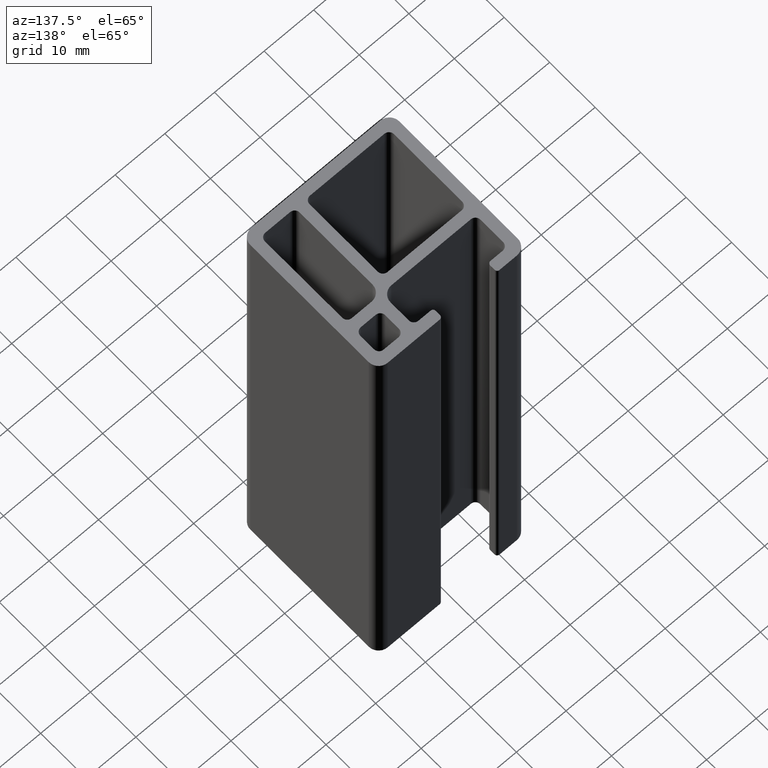
[diagram: clean part render]
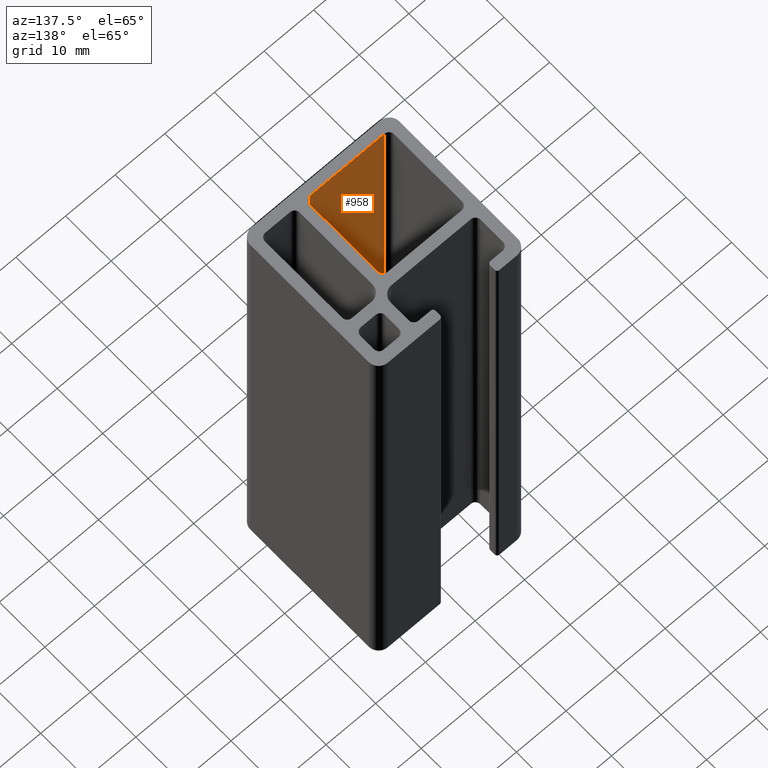
[diagram: same view with one face highlighted and labeled with its STEP entity id]
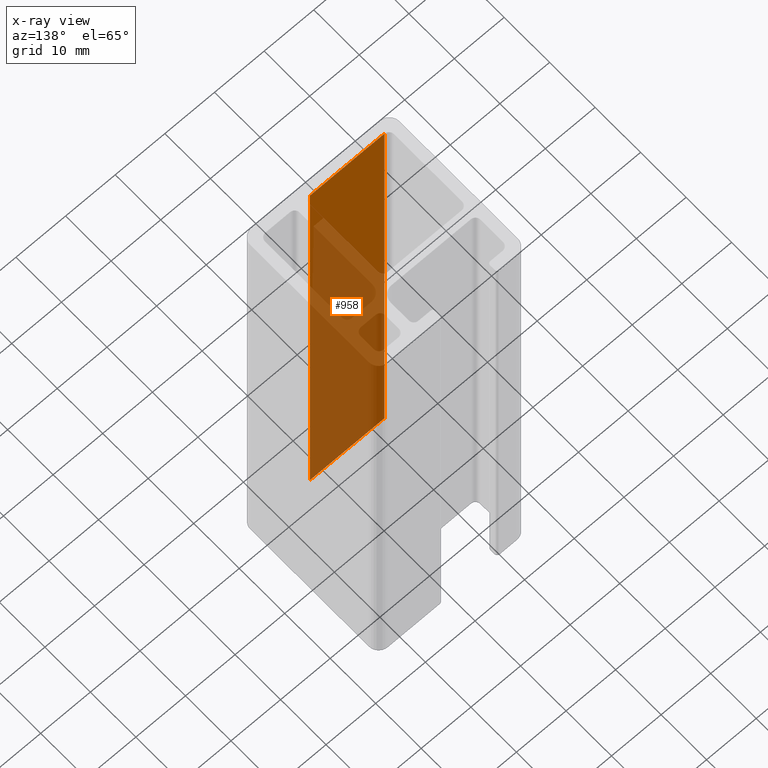
[diagram: x-ray of the same camera — body ghosted, the highlighted face saturated]
A machine part, auxiliary view. The second image highlights one B-rep face of the part: STEP entity #958.
The next image is the same camera in x-ray: the body ghosted, the highlighted face saturated — about 71% of this face is hidden behind the body in this view.
In plain terms, the highlighted planar face has unit normal (0, -1, 0).
Its self-contained STEP definition (entity closure, byte-faithful):
#106=FACE_OUTER_BOUND('',#156,.T.);
#156=EDGE_LOOP('',(#683,#684,#685,#686));
#224=LINE('',#1469,#320);
#225=LINE('',#1473,#321);
#226=LINE('',#1475,#322);
#227=LINE('',#1476,#323);
#320=VECTOR('',#1174,100.);
#321=VECTOR('',#1179,15.);
#322=VECTOR('',#1180,100.);
#323=VECTOR('',#1181,15.);
#417=VERTEX_POINT('',#1466);
#418=VERTEX_POINT('',#1468);
#419=VERTEX_POINT('',#1472);
#420=VERTEX_POINT('',#1474);
#525=EDGE_CURVE('',#418,#417,#224,.T.);
#527=EDGE_CURVE('',#419,#417,#225,.T.);
#528=EDGE_CURVE('',#420,#419,#226,.T.);
#529=EDGE_CURVE('',#418,#420,#227,.T.);
#683=ORIENTED_EDGE('',*,*,#527,.F.);
#684=ORIENTED_EDGE('',*,*,#528,.F.);
#685=ORIENTED_EDGE('',*,*,#529,.F.);
#686=ORIENTED_EDGE('',*,*,#525,.T.);
#925=PLANE('',#1024);
#958=ADVANCED_FACE('',(#106),#925,.F.);
#1024=AXIS2_PLACEMENT_3D('',#1471,#1177,#1178);
#1174=DIRECTION('',(0.,0.,1.));
#1177=DIRECTION('center_axis',(5.9211894646675E-16,-1.,0.));
#1178=DIRECTION('ref_axis',(1.,5.32907051820075E-16,0.));
#1179=DIRECTION('',(-1.,-5.9211894646675E-16,0.));
#1180=DIRECTION('',(0.,0.,1.));
#1181=DIRECTION('',(1.,5.9211894646675E-16,0.));
#1466=CARTESIAN_POINT('',(-12.,-13.,100.));
#1468=CARTESIAN_POINT('',(-12.,-13.,0.));
#1469=CARTESIAN_POINT('',(-12.,-13.,0.));
#1471=CARTESIAN_POINT('Origin',(-12.,-13.,0.));
#1472=CARTESIAN_POINT('',(3.00000000000001,-13.,100.));
#1473=CARTESIAN_POINT('',(-6.,-13.,100.));
#1474=CARTESIAN_POINT('',(3.00000000000001,-13.,0.));
#1475=CARTESIAN_POINT('',(3.00000000000001,-13.,0.));
#1476=CARTESIAN_POINT('',(-6.,-13.,0.));